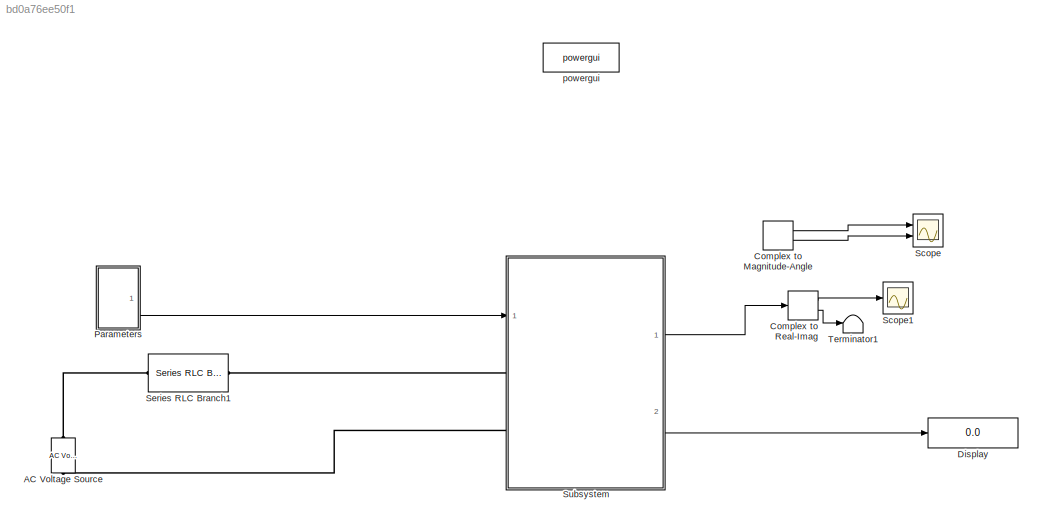
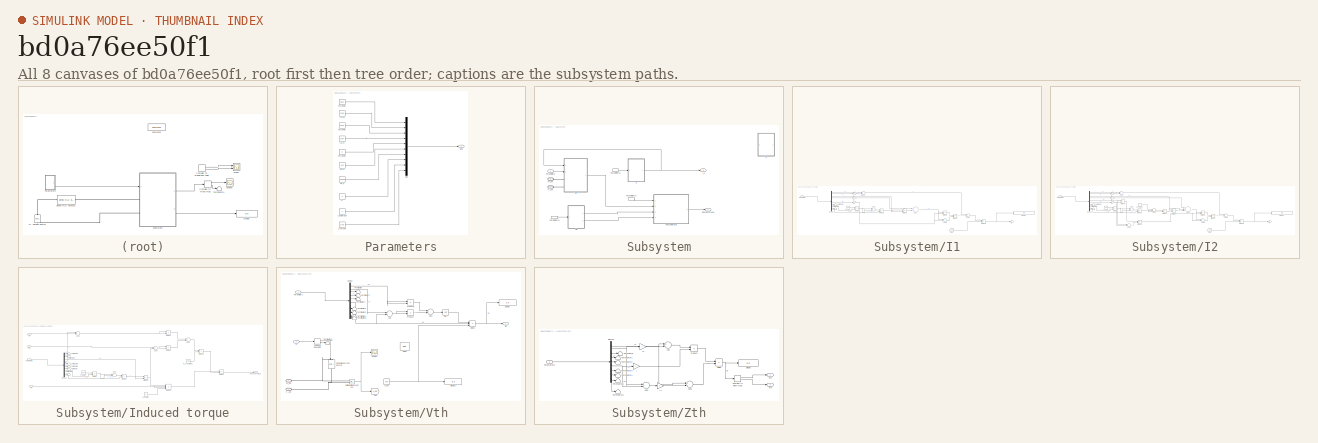
[diagram: thumbnail index - all 8 canvases of the model, root first then tree order]
MODEL slx_bd0a76ee50f1
KIND model
CONFIG AbsTol = auto
CONFIG EnableMultiTasking = off
CONFIG FixedStep = auto
CONFIG MaxStep = 1e-4
CONFIG MinStep = auto
CONFIG RelTol = 1e-3
CONFIG SampleTimeConstraint = Unconstrained
CONFIG Solver = VariableStepAuto
CONFIG SolverName = VariableStepAuto
CONFIG StartTime = 0.0
CONFIG StopTime = 0.2
BLOCK [Reference] AC Voltage Source  REF=powerlib/Electrical
Sources/AC Voltage Source
  Ports = [0, 0, 0, 0, 0, 1, 1]
  SourceBlock = powerlib/Electrical\nSources/AC Voltage Source
  SourceProductBaseCode = PS
  SourceProductName = Simscape Power Systems
  SourceType = AC Voltage Source
BLOCK [ComplexToMagnitudeAngle] Complex to Magnitude-Angle
  Commented = on
  Ports = [1, 2]
BLOCK [ComplexToRealImag] Complex to Real-Imag
  Ports = [1, 2]
BLOCK [Display] Display
  Decimation = 1
  Ports = [1]
BLOCK [SubSystem] Parameters
  Ports = [0, 1]
  RequestExecContextInheritance = off
  Variant = off
BLOCK [Constant] Parameters/L1 (H)
  Value = 1.106
BLOCK [Constant] Parameters/L2 (H)
  Value = 0.464
BLOCK [Constant] Parameters/Load torque
BLOCK [Mux] Parameters/Mux
  DisplayOption = bar
  Inputs = 10
  Ports = [10, 1]
BLOCK [Outport] Parameters/Out1
  IconDisplay = Port number
BLOCK [Constant] Parameters/P
  Value = 4
BLOCK [Constant] Parameters/R1 (Ohms)
  Value = 0.641
BLOCK [Constant] Parameters/R2 (Ohms)
  Value = 0.332
BLOCK [Constant] Parameters/R2_s
  Value = 15.0909
BLOCK [Constant] Parameters/Rc (Ohms)
  Value = 2
BLOCK [Constant] Parameters/Xm (H)
  Value = 26.3
BLOCK [Constant] Parameters/n_m (rpm)
  Value = 1760
BLOCK [Scope] Scope
  Commented = on
  NumInputPorts = 2
  Ports = [2]
  ScopeSpecificationString = Simulink.scopes.TimeScopeBlockCfg('CurrentConfiguration', extmgr.ConfigurationSet(extmgr.Configuration('Core','General UI',true),extmgr.Configuration('Core','Source UI',true),extmgr.Configuration('Sources','WiredSimulink',true),extmgr.Configuration('Visuals','Time Domain',true,'SerializedDisplays',{struct('MinYLimReal','-23.48372','MaxYLimReal','211.35347','YLabelReal','','MinYLimMag','0.00000','M...<+1994ch>
BLOCK [Scope] Scope1
  NumInputPorts = 1
  Ports = [1]
  ScopeSpecificationString = Simulink.scopes.TimeScopeBlockCfg('CurrentConfiguration', extmgr.ConfigurationSet(extmgr.Configuration('Core','General UI',true),extmgr.Configuration('Core','Source UI',true),extmgr.Configuration('Sources','WiredSimulink',true,'DataLoggingVariableName','ScopeData1'),extmgr.Configuration('Visuals','Time Domain',true,'SerializedDisplays',{struct('MinYLimReal','-19.98213','MaxYLimReal','19.75437','YL...<+1737ch>
BLOCK [Reference] Series RLC Branch1  REF=powerlib/Elements/Series RLC Branch
  Ports = [0, 0, 0, 0, 0, 1, 1]
  SourceBlock = powerlib/Elements/Series RLC Branch
  SourceProductBaseCode = PS
  SourceProductName = Simscape Power Systems
  SourceType = Series RLC Branch
BLOCK [SubSystem] Subsystem
  Ports = [1, 2, 0, 0, 0, 2]
  RequestExecContextInheritance = off
  Variant = off
BLOCK [SubSystem] Subsystem/I1
  Ports = [1, 1]
  RequestExecContextInheritance = off
  Variant = off
BLOCK [Gain] Subsystem/I1/ 
  Gain = i
  OutDataTypeStr = Inherit: Inherit via internal rule
  ParamDataTypeStr = Inherit: Inherit via internal rule
  SaturateOnIntegerOverflow = off
BLOCK [Gain] Subsystem/I1/ 1
  Gain = i
  OutDataTypeStr = Inherit: Inherit via internal rule
  ParamDataTypeStr = Inherit: Inherit via internal rule
  SaturateOnIntegerOverflow = off
BLOCK [Constant] Subsystem/I1/120*f
  Value = 7200
BLOCK [Sum] Subsystem/I1/Add1
  InputSameDT = off
  Inputs = +-
  OutDataTypeStr = Inherit: Inherit via internal rule
  Ports = [2, 1]
  SaturateOnIntegerOverflow = off
BLOCK [Sum] Subsystem/I1/Add3
  InputSameDT = off
  OutDataTypeStr = Inherit: Inherit via internal rule
  Ports = [2, 1]
  SaturateOnIntegerOverflow = off
BLOCK [Sum] Subsystem/I1/Add5
  InputSameDT = off
  OutDataTypeStr = Inherit: Inherit via internal rule
  Ports = [2, 1]
  SaturateOnIntegerOverflow = off
BLOCK [Sum] Subsystem/I1/Add6
  InputSameDT = off
  OutDataTypeStr = Inherit: Inherit via internal rule
  Ports = [2, 1]
  SaturateOnIntegerOverflow = off
BLOCK [Sum] Subsystem/I1/Add7
  InputSameDT = off
  OutDataTypeStr = Inherit: Inherit via internal rule
  Ports = [2, 1]
  SaturateOnIntegerOverflow = off
BLOCK [Demux] Subsystem/I1/Demux
  DisplayOption = bar
  Outputs = 10
  Ports = [1, 10]
BLOCK [Display] Subsystem/I1/Display
  Decimation = 1
  Ports = [1]
BLOCK [Product] Subsystem/I1/Divide
  InputSameDT = off
  Inputs = */
  OutDataTypeStr = Inherit: Inherit via internal rule
  Ports = [2, 1]
  RndMeth = Floor
  SaturateOnIntegerOverflow = off
BLOCK [Product] Subsystem/I1/Divide1
  InputSameDT = off
  Inputs = */
  OutDataTypeStr = Inherit: Inherit via internal rule
  Ports = [2, 1]
  RndMeth = Floor
  SaturateOnIntegerOverflow = off
BLOCK [Product] Subsystem/I1/Divide3
  InputSameDT = off
  Inputs = /*
  OutDataTypeStr = Inherit: Inherit via internal rule
  Ports = [2, 1]
  RndMeth = Floor
  SaturateOnIntegerOverflow = off
BLOCK [Product] Subsystem/I1/Divide6
  InputSameDT = off
  Inputs = **
  OutDataTypeStr = Inherit: Inherit via internal rule
  Ports = [2, 1]
  RndMeth = Floor
  SaturateOnIntegerOverflow = off
BLOCK [Product] Subsystem/I1/Divide7
  InputSameDT = off
  Inputs = */
  OutDataTypeStr = Inherit: Inherit via internal rule
  Ports = [2, 1]
  RndMeth = Floor
  SaturateOnIntegerOverflow = off
BLOCK [Product] Subsystem/I1/Divide8
  InputSameDT = off
  Inputs = /*
  OutDataTypeStr = Inherit: Inherit via internal rule
  Ports = [2, 1]
  RndMeth = Floor
  SaturateOnIntegerOverflow = off
BLOCK [From] Subsystem/I1/From
  GotoTag = V_phi
  TagVisibility = global
BLOCK [Outport] Subsystem/I1/I1
  IconDisplay = Port number
BLOCK [Inport] Subsystem/I1/Parameters
  IconDisplay = Port number
BLOCK [Terminator] Subsystem/I1/Terminator
BLOCK [Terminator] Subsystem/I1/Terminator1
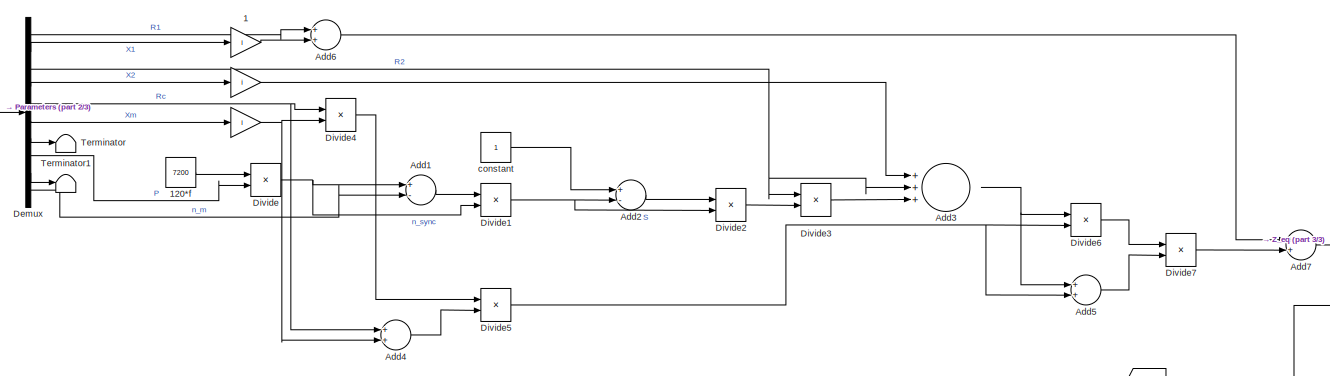
[diagram: Subsystem/I2 - part 1/3, center side, full height]
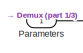
[diagram: Subsystem/I2 - part 2/3, top left region]
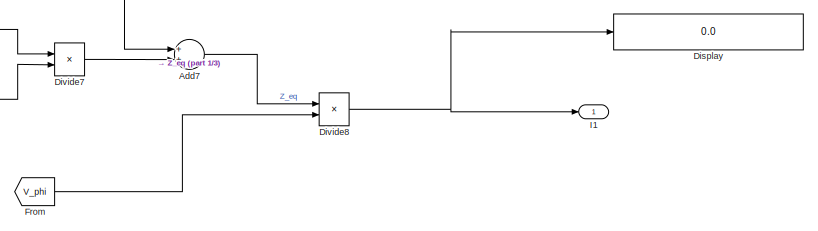
[diagram: Subsystem/I2 - part 3/3, bottom right region]
BLOCK [SubSystem] Subsystem/I2
  Commented = on
  Ports = [1, 1]
  RequestExecContextInheritance = off
  Variant = off
BLOCK [Gain] Subsystem/I2/ 
  Gain = i
  OutDataTypeStr = Inherit: Inherit via internal rule
  ParamDataTypeStr = Inherit: Inherit via internal rule
  SaturateOnIntegerOverflow = off
BLOCK [Gain] Subsystem/I2/ 1
  Gain = i
  OutDataTypeStr = Inherit: Inherit via internal rule
  ParamDataTypeStr = Inherit: Inherit via internal rule
  SaturateOnIntegerOverflow = off
BLOCK [Constant] Subsystem/I2/120*f
  Value = 7200
BLOCK [Sum] Subsystem/I2/Add1
  InputSameDT = off
  Inputs = +-
  OutDataTypeStr = Inherit: Inherit via internal rule
  Ports = [2, 1]
  SaturateOnIntegerOverflow = off
BLOCK [Sum] Subsystem/I2/Add2
  InputSameDT = off
  Inputs = +-
  OutDataTypeStr = Inherit: Inherit via internal rule
  Ports = [2, 1]
  SaturateOnIntegerOverflow = off
BLOCK [Sum] Subsystem/I2/Add3
  InputSameDT = off
  Inputs = +++
  OutDataTypeStr = Inherit: Inherit via internal rule
  Ports = [3, 1]
  SaturateOnIntegerOverflow = off
BLOCK [Sum] Subsystem/I2/Add4
  InputSameDT = off
  OutDataTypeStr = Inherit: Inherit via internal rule
  Ports = [2, 1]
  SaturateOnIntegerOverflow = off
BLOCK [Sum] Subsystem/I2/Add5
  InputSameDT = off
  OutDataTypeStr = Inherit: Inherit via internal rule
  Ports = [2, 1]
  SaturateOnIntegerOverflow = off
BLOCK [Sum] Subsystem/I2/Add6
  InputSameDT = off
  OutDataTypeStr = Inherit: Inherit via internal rule
  Ports = [2, 1]
  SaturateOnIntegerOverflow = off
BLOCK [Sum] Subsystem/I2/Add7
  InputSameDT = off
  OutDataTypeStr = Inherit: Inherit via internal rule
  Ports = [2, 1]
  SaturateOnIntegerOverflow = off
BLOCK [Demux] Subsystem/I2/Demux
  DisplayOption = bar
  Outputs = 10
  Ports = [1, 10]
BLOCK [Display] Subsystem/I2/Display
  Decimation = 1
  Ports = [1]
BLOCK [Product] Subsystem/I2/Divide
  InputSameDT = off
  Inputs = */
  OutDataTypeStr = Inherit: Inherit via internal rule
  Ports = [2, 1]
  RndMeth = Floor
  SaturateOnIntegerOverflow = off
BLOCK [Product] Subsystem/I2/Divide1
  InputSameDT = off
  Inputs = */
  OutDataTypeStr = Inherit: Inherit via internal rule
  Ports = [2, 1]
  RndMeth = Floor
  SaturateOnIntegerOverflow = off
BLOCK [Product] Subsystem/I2/Divide2
  InputSameDT = off
  Inputs = */
  OutDataTypeStr = Inherit: Inherit via internal rule
  Ports = [2, 1]
  RndMeth = Floor
  SaturateOnIntegerOverflow = off
BLOCK [Product] Subsystem/I2/Divide3
  InputSameDT = off
  Inputs = **
  OutDataTypeStr = Inherit: Inherit via internal rule
  Ports = [2, 1]
  RndMeth = Floor
  SaturateOnIntegerOverflow = off
BLOCK [Product] Subsystem/I2/Divide4
  InputSameDT = off
  Inputs = **
  OutDataTypeStr = Inherit: Inherit via internal rule
  Ports = [2, 1]
  RndMeth = Floor
  SaturateOnIntegerOverflow = off
BLOCK [Product] Subsystem/I2/Divide5
  InputSameDT = off
  Inputs = */
  OutDataTypeStr = Inherit: Inherit via internal rule
  Ports = [2, 1]
  RndMeth = Floor
  SaturateOnIntegerOverflow = off
BLOCK [Product] Subsystem/I2/Divide6
  InputSameDT = off
  Inputs = **
  OutDataTypeStr = Inherit: Inherit via internal rule
  Ports = [2, 1]
  RndMeth = Floor
  SaturateOnIntegerOverflow = off
BLOCK [Product] Subsystem/I2/Divide7
  InputSameDT = off
  Inputs = */
  OutDataTypeStr = Inherit: Inherit via internal rule
  Ports = [2, 1]
  RndMeth = Floor
  SaturateOnIntegerOverflow = off
BLOCK [Product] Subsystem/I2/Divide8
  InputSameDT = off
  Inputs = /*
  OutDataTypeStr = Inherit: Inherit via internal rule
  Ports = [2, 1]
  RndMeth = Floor
  SaturateOnIntegerOverflow = off
BLOCK [From] Subsystem/I2/From
  GotoTag = V_phi
  TagVisibility = global
BLOCK [Outport] Subsystem/I2/I1
  IconDisplay = Port number
BLOCK [Inport] Subsystem/I2/Parameters
  IconDisplay = Port number
BLOCK [Terminator] Subsystem/I2/Terminator
BLOCK [Terminator] Subsystem/I2/Terminator1
BLOCK [Constant] Subsystem/I2/constant
BLOCK [Outport] Subsystem/I_1
  IconDisplay = Port number
BLOCK [Outport] Subsystem/Induced Torque
  IconDisplay = Port number
  Port = 2
BLOCK [SubSystem] Subsystem/Induced torque
  Ports = [4, 1]
  RequestExecContextInheritance = off
  Variant = off
BLOCK [Constant] Subsystem/Induced torque/120*f
  Value = 7200
BLOCK [Sum] Subsystem/Induced torque/Add1
  InputSameDT = off
  Inputs = +-
  OutDataTypeStr = Inherit: Inherit via internal rule
  Ports = [2, 1]
  SaturateOnIntegerOverflow = off
BLOCK [Sum] Subsystem/Induced torque/Add2
  InputSameDT = off
  OutDataTypeStr = Inherit: Inherit via internal rule
  Ports = [2, 1]
  SaturateOnIntegerOverflow = off
BLOCK [Sum] Subsystem/Induced torque/Add3
  InputSameDT = off
  OutDataTypeStr = Inherit: Inherit via internal rule
  Ports = [2, 1]
  SaturateOnIntegerOverflow = off
BLOCK [Sum] Subsystem/Induced torque/Add4
  InputSameDT = off
  OutDataTypeStr = Inherit: Inherit via internal rule
  Ports = [2, 1]
  SaturateOnIntegerOverflow = off
BLOCK [Demux] Subsystem/Induced torque/Demux
  DisplayOption = bar
  Outputs = 10
  Ports = [1, 10]
BLOCK [Product] Subsystem/Induced torque/Divide
  InputSameDT = off
  Inputs = */
  OutDataTypeStr = Inherit: Inherit via internal rule
  Ports = [2, 1]
  RndMeth = Floor
  SaturateOnIntegerOverflow = off
BLOCK [Product] Subsystem/Induced torque/Divide1
  InputSameDT = off
  Inputs = */
  OutDataTypeStr = Inherit: Inherit via internal rule
  Ports = [2, 1]
  RndMeth = Floor
  SaturateOnIntegerOverflow = off
BLOCK [Product] Subsystem/Induced torque/Divide2
  InputSameDT = off
  Inputs = **
  OutDataTypeStr = Inherit: Inherit via internal rule
  Ports = [2, 1]
  RndMeth = Floor
  SaturateOnIntegerOverflow = off
BLOCK [Product] Subsystem/Induced torque/Divide3
  InputSameDT = off
  Inputs = /*
  OutDataTypeStr = Inherit: Inherit via internal rule
  Ports = [2, 1]
  RndMeth = Floor
  SaturateOnIntegerOverflow = off
BLOCK [Product] Subsystem/Induced torque/Divide4
  InputSameDT = off
  Inputs = **
  OutDataTypeStr = Inherit: Inherit via internal rule
  Ports = [2, 1]
  RndMeth = Floor
  SaturateOnIntegerOverflow = off
BLOCK [Product] Subsystem/Induced torque/Divide5
  InputSameDT = off
  Inputs = ****
  OutDataTypeStr = Inherit: Inherit via internal rule
  Ports = [4, 1]
  RndMeth = Floor
  SaturateOnIntegerOverflow = off
BLOCK [Product] Subsystem/Induced torque/Divide6
  InputSameDT = off
  Inputs = **
  OutDataTypeStr = Inherit: Inherit via internal rule
  Ports = [2, 1]
  RndMeth = Floor
  SaturateOnIntegerOverflow = off
BLOCK [Product] Subsystem/Induced torque/Divide7
  InputSameDT = off
  Inputs = */
  OutDataTypeStr = Inherit: Inherit via internal rule
  Ports = [2, 1]
  RndMeth = Floor
  SaturateOnIntegerOverflow = off
BLOCK [Outport] Subsystem/Induced torque/Induced Torque
  IconDisplay = Port number
BLOCK [Inport] Subsystem/Induced torque/Parameters
  IconDisplay = Port number
BLOCK [Inport] Subsystem/Induced torque/Rth
  IconDisplay = Port number
  Port = 3
BLOCK [Terminator] Subsystem/Induced torque/Terminator
BLOCK [Terminator] Subsystem/Induced torque/Terminator1
BLOCK [Terminator] Subsystem/Induced torque/Terminator2
BLOCK [Terminator] Subsystem/Induced torque/Terminator3
BLOCK [Terminator] Subsystem/Induced torque/Terminator4
BLOCK [Terminator] Subsystem/Induced torque/Terminator5
BLOCK [Inport] Subsystem/Induced torque/Vth
  IconDisplay = Port number
  Port = 2
BLOCK [Inport] Subsystem/Induced torque/Xth
  IconDisplay = Port number
  Port = 4
BLOCK [Constant] Subsystem/Induced torque/constant
  Value = 3
BLOCK [Constant] Subsystem/Induced torque/w_sync (rad//s)
  Value = 188.5
BLOCK [Inport] Subsystem/Parameters
  IconDisplay = Port number
BLOCK [InportShadow] Subsystem/Parameters1
  IconDisplay = Port number
BLOCK [InportShadow] Subsystem/Parameters2
  IconDisplay = Port number
BLOCK [InportShadow] Subsystem/Parameters3
  IconDisplay = Port number
BLOCK [PMIOPort] Subsystem/V-_phi
  Port = 2
  Side = Left
BLOCK [PMIOPort] Subsystem/V=_phi
  Port = 1
  Side = Left
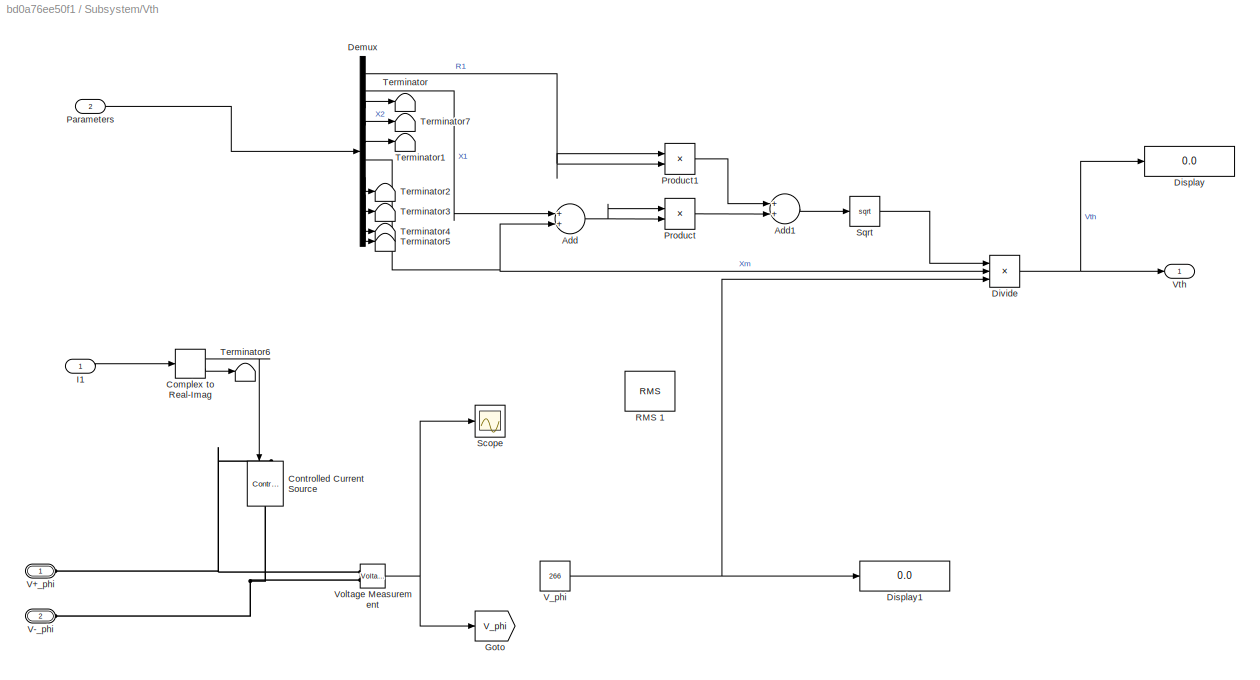
BLOCK [SubSystem] Subsystem/Vth
  Ports = [2, 1, 0, 0, 0, 2]
  RequestExecContextInheritance = off
  Variant = off
BLOCK [Sum] Subsystem/Vth/Add
  InputSameDT = off
  OutDataTypeStr = Inherit: Inherit via internal rule
  Ports = [2, 1]
  SaturateOnIntegerOverflow = off
BLOCK [Sum] Subsystem/Vth/Add1
  InputSameDT = off
  OutDataTypeStr = Inherit: Inherit via internal rule
  Ports = [2, 1]
  SaturateOnIntegerOverflow = off
BLOCK [ComplexToRealImag] Subsystem/Vth/Complex to Real-Imag
  Ports = [1, 2]
BLOCK [Reference] Subsystem/Vth/Controlled Current Source  REF=powerlib/Electrical
Sources/Controlled Current Source
  Ports = [1, 0, 0, 0, 0, 1, 1]
  SourceBlock = powerlib/Electrical\nSources/Controlled Current Source
  SourceProductBaseCode = PS
  SourceProductName = Simscape Power Systems
  SourceType = Controlled Current Source
BLOCK [Demux] Subsystem/Vth/Demux
  DisplayOption = bar
  Outputs = 10
  Ports = [1, 10]
BLOCK [Display] Subsystem/Vth/Display
  Decimation = 1
  Ports = [1]
BLOCK [Display] Subsystem/Vth/Display1
  Decimation = 1
  Ports = [1]
BLOCK [Product] Subsystem/Vth/Divide
  InputSameDT = off
  Inputs = /**
  OutDataTypeStr = Inherit: Inherit via internal rule
  Ports = [3, 1]
  RndMeth = Floor
  SaturateOnIntegerOverflow = off
BLOCK [Goto] Subsystem/Vth/Goto
  GotoTag = V_phi
  TagVisibility = global
BLOCK [Inport] Subsystem/Vth/I1
  IconDisplay = Port number
BLOCK [Inport] Subsystem/Vth/Parameters
  IconDisplay = Port number
  Port = 2
BLOCK [Product] Subsystem/Vth/Product
  InputSameDT = off
  OutDataTypeStr = Inherit: Inherit via internal rule
  Ports = [2, 1]
  RndMeth = Floor
  SaturateOnIntegerOverflow = off
BLOCK [Product] Subsystem/Vth/Product1
  InputSameDT = off
  OutDataTypeStr = Inherit: Inherit via internal rule
  Ports = [2, 1]
  RndMeth = Floor
  SaturateOnIntegerOverflow = off
BLOCK [Reference] Subsystem/Vth/RMS 1  REF=powerlib_meascontrol/Measurements/RMS
  Ports = [1, 1]
  SourceBlock = powerlib_meascontrol/Measurements/RMS
  SourceProductBaseCode = PS
  SourceProductName = Simscape Power Systems
  SourceType = RMS
BLOCK [Scope] Subsystem/Vth/Scope
  NumInputPorts = 1
  Ports = [1]
  ScopeSpecificationString = Simulink.scopes.TimeScopeBlockCfg('CurrentConfiguration', extmgr.ConfigurationSet(extmgr.Configuration('Core','General UI',true),extmgr.Configuration('Core','Source UI',true),extmgr.Configuration('Sources','WiredSimulink',true,'DataLoggingVariableName','ScopeData1'),extmgr.Configuration('Visuals','Time Domain',true,'SerializedDisplays',{struct('MinYLimReal','-347.08088','MaxYLimReal','319.67874','...<+1463ch>
BLOCK [Sqrt] Subsystem/Vth/Sqrt
BLOCK [Terminator] Subsystem/Vth/Terminator
BLOCK [Terminator] Subsystem/Vth/Terminator1
BLOCK [Terminator] Subsystem/Vth/Terminator2
BLOCK [Terminator] Subsystem/Vth/Terminator3
BLOCK [Terminator] Subsystem/Vth/Terminator4
BLOCK [Terminator] Subsystem/Vth/Terminator5
BLOCK [Terminator] Subsystem/Vth/Terminator6
BLOCK [Terminator] Subsystem/Vth/Terminator7
BLOCK [PMIOPort] Subsystem/Vth/V+_phi
  Port = 1
  Side = Left
BLOCK [PMIOPort] Subsystem/Vth/V-_phi
  Port = 2
  Side = Left
BLOCK [Constant] Subsystem/Vth/V_phi
  Value = 266
BLOCK [Reference] Subsystem/Vth/Voltage Measurement  REF=powerlib/Measurements/Voltage Measurement
  Ports = [0, 1, 0, 0, 0, 2]
  SourceBlock = powerlib/Measurements/Voltage Measurement
  SourceProductBaseCode = PS
  SourceProductName = Simscape Power Systems
  SourceType = Voltage Measurement
  UserDataPersistent = on
BLOCK [Outport] Subsystem/Vth/Vth
  IconDisplay = Port number
BLOCK [SubSystem] Subsystem/Zth
  Ports = [1, 2]
  RequestExecContextInheritance = off
  Variant = off
BLOCK [Sum] Subsystem/Zth/Add
  InputSameDT = off
  OutDataTypeStr = Inherit: Inherit via internal rule
  Ports = [2, 1]
  SaturateOnIntegerOverflow = off
BLOCK [Sum] Subsystem/Zth/Add1
  InputSameDT = off
  OutDataTypeStr = Inherit: Inherit via internal rule
  Ports = [2, 1]
  SaturateOnIntegerOverflow = off
BLOCK [Sum] Subsystem/Zth/Add2
  InputSameDT = off
  OutDataTypeStr = Inherit: Inherit via internal rule
  Ports = [2, 1]
  SaturateOnIntegerOverflow = off
BLOCK [ComplexToRealImag] Subsystem/Zth/Complex to Real-Imag
  Ports = [1, 2]
BLOCK [Demux] Subsystem/Zth/Demux
  DisplayOption = bar
  Outputs = 10
  Ports = [1, 10]
BLOCK [Display] Subsystem/Zth/Display
  Decimation = 1
  Ports = [1]
BLOCK [Product] Subsystem/Zth/Divide
  InputSameDT = off
  Inputs = */
  OutDataTypeStr = Inherit: Inherit via internal rule
  Ports = [2, 1]
  RndMeth = Floor
  SaturateOnIntegerOverflow = off
BLOCK [Inport] Subsystem/Zth/Parameters
  IconDisplay = Port number
BLOCK [Product] Subsystem/Zth/Product
  InputSameDT = off
  OutDataTypeStr = Inherit: Inherit via internal rule
  Ports = [2, 1]
  RndMeth = Floor
  SaturateOnIntegerOverflow = off
BLOCK [Outport] Subsystem/Zth/Rth
  IconDisplay = Port number
BLOCK [Terminator] Subsystem/Zth/Terminator
BLOCK [Terminator] Subsystem/Zth/Terminator1
BLOCK [Terminator] Subsystem/Zth/Terminator2
BLOCK [Terminator] Subsystem/Zth/Terminator3
BLOCK [Terminator] Subsystem/Zth/Terminator4
BLOCK [Terminator] Subsystem/Zth/Terminator5
BLOCK [Terminator] Subsystem/Zth/Terminator6
BLOCK [Outport] Subsystem/Zth/Xth
  IconDisplay = Port number
  Port = 2
BLOCK [Gain] Subsystem/Zth/i 
  Gain = i
  OutDataTypeStr = Inherit: Inherit via internal rule
  ParamDataTypeStr = Inherit: Inherit via internal rule
  SaturateOnIntegerOverflow = off
BLOCK [Gain] Subsystem/Zth/i 1
  Gain = i
  OutDataTypeStr = Inherit: Inherit via internal rule
  ParamDataTypeStr = Inherit: Inherit via internal rule
  SaturateOnIntegerOverflow = off
BLOCK [Gain] Subsystem/Zth/i 2
  Gain = i
  OutDataTypeStr = Inherit: Inherit via internal rule
  ParamDataTypeStr = Inherit: Inherit via internal rule
  SaturateOnIntegerOverflow = off
BLOCK [Terminator] Terminator1
BLOCK [Reference] powergui  REF=powerlib/powergui
  Ports = []
  Priority = 1
  SourceBlock = powerlib/powergui
  SourceProductBaseCode = PS
  SourceProductName = Simscape Power Systems
  SourceType = PSB option menu block
LINE Complex to Magnitude-Angle:1 -> Scope:1
LINE Complex to Magnitude-Angle:2 -> Scope:2
LINE Complex to Real-Imag:1 -> Scope1:1
LINE Complex to Real-Imag:2 -> Terminator1:1
LINE Parameters/L1 (H):1 -> Parameters/Mux:2
LINE Parameters/L2 (H):1 -> Parameters/Mux:4
LINE Parameters/Load torque:1 -> Parameters/Mux:9
LINE Parameters/Mux:1 -> Parameters/Out1:1
LINE Parameters/P:1 -> Parameters/Mux:8
LINE Parameters/R1 (Ohms):1 -> Parameters/Mux:1
LINE Parameters/R2 (Ohms):1 -> Parameters/Mux:3
LINE Parameters/R2_s:1 -> Parameters/Mux:7
LINE Parameters/Rc (Ohms):1 -> Parameters/Mux:5
LINE Parameters/Xm (H):1 -> Parameters/Mux:6
LINE Parameters/n_m (rpm):1 -> Parameters/Mux:10
LINE Parameters:1 -> Subsystem:1
LINE Subsystem/I1/ 1:1 -> Subsystem/I1/Add6:2
NET Subsystem/I1/ :1 -> Subsystem/I1/Add3:1, Subsystem/I1/Add5:2, Subsystem/I1/Divide6:2
LINE Subsystem/I1/120*f:1 -> Subsystem/I1/Divide:1
LINE Subsystem/I1/Add1:1 -> Subsystem/I1/Divide1:1
NET Subsystem/I1/Add3:1 -> Subsystem/I1/Add5:1, Subsystem/I1/Divide6:1
LINE Subsystem/I1/Add5:1 -> Subsystem/I1/Divide7:2
LINE Subsystem/I1/Add6:1 -> Subsystem/I1/Add7:1
LINE Subsystem/I1/Add7:1 -> Subsystem/I1/Divide8:1
LINE Subsystem/I1/Demux:1 -> Subsystem/I1/Add6:1
LINE Subsystem/I1/Demux:10 -> Subsystem/I1/Add1:2
LINE Subsystem/I1/Demux:2 -> Subsystem/I1/ 1:1
LINE Subsystem/I1/Demux:3 -> Subsystem/I1/Divide3:2
LINE Subsystem/I1/Demux:4 -> Subsystem/I1/ :1
LINE Subsystem/I1/Demux:6 -> Subsystem/I1/ :1
LINE Subsystem/I1/Demux:7 -> Subsystem/I1/Terminator:1
LINE Subsystem/I1/Demux:8 -> Subsystem/I1/Divide:2
LINE Subsystem/I1/Demux:9 -> Subsystem/I1/Terminator1:1
LINE Subsystem/I1/Divide1:1 -> Subsystem/I1/Divide3:1
LINE Subsystem/I1/Divide3:1 -> Subsystem/I1/Add3:2
LINE Subsystem/I1/Divide6:1 -> Subsystem/I1/Divide7:1
LINE Subsystem/I1/Divide7:1 -> Subsystem/I1/Add7:2
NET Subsystem/I1/Divide8:1 -> Subsystem/I1/Display:1, Subsystem/I1/I1:1
NET Subsystem/I1/Divide:1 -> Subsystem/I1/Add1:1, Subsystem/I1/Divide1:2
LINE Subsystem/I1/From:1 -> Subsystem/I1/Divide8:2
LINE Subsystem/I1/Parameters:1 -> Subsystem/I1/Demux:1
NET Subsystem/I1:1 -> Subsystem/I_1:1, Subsystem/Vth:1
LINE Subsystem/I2/ 1:1 -> Subsystem/I2/Add6:2
NET Subsystem/I2/ :1 -> Subsystem/I2/Add3:1, Subsystem/I2/Add4:2, Subsystem/I2/Divide4:2
LINE Subsystem/I2/120*f:1 -> Subsystem/I2/Divide:1
LINE Subsystem/I2/Add1:1 -> Subsystem/I2/Divide1:1
LINE Subsystem/I2/Add2:1 -> Subsystem/I2/Divide2:1
NET Subsystem/I2/Add3:1 -> Subsystem/I2/Add5:1, Subsystem/I2/Divide6:1
LINE Subsystem/I2/Add4:1 -> Subsystem/I2/Divide5:2
LINE Subsystem/I2/Add5:1 -> Subsystem/I2/Divide7:2
LINE Subsystem/I2/Add6:1 -> Subsystem/I2/Add7:1
LINE Subsystem/I2/Add7:1 -> Subsystem/I2/Divide8:1
LINE Subsystem/I2/Demux:1 -> Subsystem/I2/Add6:1
LINE Subsystem/I2/Demux:10 -> Subsystem/I2/Add1:2
LINE Subsystem/I2/Demux:2 -> Subsystem/I2/ 1:1
NET Subsystem/I2/Demux:3 -> Subsystem/I2/Add3:2, Subsystem/I2/Divide3:1
LINE Subsystem/I2/Demux:4 -> Subsystem/I2/ :1
NET Subsystem/I2/Demux:5 -> Subsystem/I2/Add4:1, Subsystem/I2/Divide4:1
LINE Subsystem/I2/Demux:6 -> Subsystem/I2/ :1
LINE Subsystem/I2/Demux:7 -> Subsystem/I2/Terminator:1
LINE Subsystem/I2/Demux:8 -> Subsystem/I2/Divide:2
LINE Subsystem/I2/Demux:9 -> Subsystem/I2/Terminator1:1
NET Subsystem/I2/Divide1:1 -> Subsystem/I2/Add2:2, Subsystem/I2/Divide2:2
LINE Subsystem/I2/Divide2:1 -> Subsystem/I2/Divide3:2
LINE Subsystem/I2/Divide3:1 -> Subsystem/I2/Add3:3
LINE Subsystem/I2/Divide4:1 -> Subsystem/I2/Divide5:1
NET Subsystem/I2/Divide5:1 -> Subsystem/I2/Add5:2, Subsystem/I2/Divide6:2
LINE Subsystem/I2/Divide6:1 -> Subsystem/I2/Divide7:1
LINE Subsystem/I2/Divide7:1 -> Subsystem/I2/Add7:2
NET Subsystem/I2/Divide8:1 -> Subsystem/I2/Display:1, Subsystem/I2/I1:1
NET Subsystem/I2/Divide:1 -> Subsystem/I2/Add1:1, Subsystem/I2/Divide1:2
LINE Subsystem/I2/From:1 -> Subsystem/I2/Divide8:2
LINE Subsystem/I2/Parameters:1 -> Subsystem/I2/Demux:1
LINE Subsystem/I2/constant:1 -> Subsystem/I2/Add2:1
LINE Subsystem/Induced torque/120*f:1 -> Subsystem/Induced torque/Divide:1
LINE Subsystem/Induced torque/Add1:1 -> Subsystem/Induced torque/Divide1:1
NET Subsystem/Induced torque/Add2:1 -> Subsystem/Induced torque/Divide2:1, Subsystem/Induced torque/Divide2:2
NET Subsystem/Induced torque/Add3:1 -> Subsystem/Induced torque/Divide4:1, Subsystem/Induced torque/Divide4:2
LINE Subsystem/Induced torque/Add4:1 -> Subsystem/Induced torque/Divide6:1
LINE Subsystem/Induced torque/Demux:1 -> Subsystem/Induced torque/Terminator2:1
LINE Subsystem/Induced torque/Demux:10 -> Subsystem/Induced torque/Add1:2
LINE Subsystem/Induced torque/Demux:2 -> Subsystem/Induced torque/Terminator3:1
LINE Subsystem/Induced torque/Demux:3 -> Subsystem/Induced torque/Divide3:2
LINE Subsystem/Induced torque/Demux:4 -> Subsystem/Induced torque/Add2:1
LINE Subsystem/Induced torque/Demux:5 -> Subsystem/Induced torque/Terminator4:1
LINE Subsystem/Induced torque/Demux:6 -> Subsystem/Induced torque/Terminator5:1
LINE Subsystem/Induced torque/Demux:7 -> Subsystem/Induced torque/Terminator:1
LINE Subsystem/Induced torque/Demux:8 -> Subsystem/Induced torque/Divide:2
LINE Subsystem/Induced torque/Demux:9 -> Subsystem/Induced torque/Terminator1:1
LINE Subsystem/Induced torque/Divide1:1 -> Subsystem/Induced torque/Divide3:1
LINE Subsystem/Induced torque/Divide2:1 -> Subsystem/Induced torque/Add4:1
NET Subsystem/Induced torque/Divide3:1 -> Subsystem/Induced torque/Add3:2, Subsystem/Induced torque/Divide5:1
LINE Subsystem/Induced torque/Divide4:1 -> Subsystem/Induced torque/Add4:2
LINE Subsystem/Induced torque/Divide5:1 -> Subsystem/Induced torque/Divide7:1
LINE Subsystem/Induced torque/Divide6:1 -> Subsystem/Induced torque/Divide7:2
LINE Subsystem/Induced torque/Divide7:1 -> Subsystem/Induced torque/Induced Torque:1
NET Subsystem/Induced torque/Divide:1 -> Subsystem/Induced torque/Add1:1, Subsystem/Induced torque/Divide1:2
LINE Subsystem/Induced torque/Parameters:1 -> Subsystem/Induced torque/Demux:1
LINE Subsystem/Induced torque/Rth:1 -> Subsystem/Induced torque/Add3:1
NET Subsystem/Induced torque/Vth:1 -> Subsystem/Induced torque/Divide5:2, Subsystem/Induced torque/Divide5:3
LINE Subsystem/Induced torque/Xth:1 -> Subsystem/Induced torque/Add2:2
LINE Subsystem/Induced torque/constant:1 -> Subsystem/Induced torque/Divide5:4
LINE Subsystem/Induced torque/w_sync (rad//s):1 -> Subsystem/Induced torque/Divide6:2
LINE Subsystem/Induced torque:1 -> Subsystem/Induced Torque:1
LINE Subsystem/Parameters1:1 -> Subsystem/I1:1
LINE Subsystem/Parameters2:1 -> Subsystem/Zth:1
LINE Subsystem/Parameters3:1 -> Subsystem/Induced torque:1
LINE Subsystem/Parameters:1 -> Subsystem/Vth:2
LINE Subsystem/Vth/Add1:1 -> Subsystem/Vth/Sqrt:1
NET Subsystem/Vth/Add:1 -> Subsystem/Vth/Product:1, Subsystem/Vth/Product:2
LINE Subsystem/Vth/Complex to Real-Imag:1 -> Subsystem/Vth/Controlled Current Source:1
LINE Subsystem/Vth/Complex to Real-Imag:2 -> Subsystem/Vth/Terminator6:1
NET Subsystem/Vth/Demux:1 -> Subsystem/Vth/Product1:1, Subsystem/Vth/Product1:2
LINE Subsystem/Vth/Demux:10 -> Subsystem/Vth/Terminator5:1
LINE Subsystem/Vth/Demux:2 -> Subsystem/Vth/Add:1
LINE Subsystem/Vth/Demux:3 -> Subsystem/Vth/Terminator:1
LINE Subsystem/Vth/Demux:4 -> Subsystem/Vth/Terminator7:1
LINE Subsystem/Vth/Demux:5 -> Subsystem/Vth/Terminator1:1
NET Subsystem/Vth/Demux:6 -> Subsystem/Vth/Add:2, Subsystem/Vth/Divide:2
LINE Subsystem/Vth/Demux:7 -> Subsystem/Vth/Terminator2:1
LINE Subsystem/Vth/Demux:8 -> Subsystem/Vth/Terminator3:1
LINE Subsystem/Vth/Demux:9 -> Subsystem/Vth/Terminator4:1
NET Subsystem/Vth/Divide:1 -> Subsystem/Vth/Display:1, Subsystem/Vth/Vth:1
LINE Subsystem/Vth/I1:1 -> Subsystem/Vth/Complex to Real-Imag:1
LINE Subsystem/Vth/Parameters:1 -> Subsystem/Vth/Demux:1
LINE Subsystem/Vth/Product1:1 -> Subsystem/Vth/Add1:1
LINE Subsystem/Vth/Product:1 -> Subsystem/Vth/Add1:2
LINE Subsystem/Vth/Sqrt:1 -> Subsystem/Vth/Divide:1
NET Subsystem/Vth/V_phi:1 -> Subsystem/Vth/Display1:1, Subsystem/Vth/Divide:3
NET Subsystem/Vth/Voltage Measurement:1 -> Subsystem/Vth/Goto:1, Subsystem/Vth/Scope:1
LINE Subsystem/Vth:1 -> Subsystem/Induced torque:2
LINE Subsystem/Zth/Add1:1 -> Subsystem/Zth/i 1:1
LINE Subsystem/Zth/Add2:1 -> Subsystem/Zth/Divide:2
LINE Subsystem/Zth/Add:1 -> Subsystem/Zth/Product:1
LINE Subsystem/Zth/Complex to Real-Imag:1 -> Subsystem/Zth/Rth:1
LINE Subsystem/Zth/Complex to Real-Imag:2 -> Subsystem/Zth/Xth:1
NET Subsystem/Zth/Demux:1 -> Subsystem/Zth/Add2:1, Subsystem/Zth/Add:1
LINE Subsystem/Zth/Demux:10 -> Subsystem/Zth/Terminator6:1
NET Subsystem/Zth/Demux:2 -> Subsystem/Zth/Add1:1, Subsystem/Zth/i 2:1
LINE Subsystem/Zth/Demux:3 -> Subsystem/Zth/Terminator:1
LINE Subsystem/Zth/Demux:4 -> Subsystem/Zth/Terminator1:1
LINE Subsystem/Zth/Demux:5 -> Subsystem/Zth/Terminator2:1
NET Subsystem/Zth/Demux:6 -> Subsystem/Zth/Add1:2, Subsystem/Zth/i :1
LINE Subsystem/Zth/Demux:7 -> Subsystem/Zth/Terminator3:1
LINE Subsystem/Zth/Demux:8 -> Subsystem/Zth/Terminator4:1
LINE Subsystem/Zth/Demux:9 -> Subsystem/Zth/Terminator5:1
NET Subsystem/Zth/Divide:1 -> Subsystem/Zth/Complex to Real-Imag:1, Subsystem/Zth/Display:1
LINE Subsystem/Zth/Parameters:1 -> Subsystem/Zth/Demux:1
LINE Subsystem/Zth/Product:1 -> Subsystem/Zth/Divide:1
LINE Subsystem/Zth/i 1:1 -> Subsystem/Zth/Add2:2
LINE Subsystem/Zth/i 2:1 -> Subsystem/Zth/Add:2
LINE Subsystem/Zth/i :1 -> Subsystem/Zth/Product:2
LINE Subsystem/Zth:1 -> Subsystem/Induced torque:3
LINE Subsystem/Zth:2 -> Subsystem/Induced torque:4
LINE Subsystem:1 -> Complex to Real-Imag:1
LINE Subsystem:2 -> Display:1
PLINE AC Voltage Source:LConn1 -- Subsystem:LConn2
PLINE AC Voltage Source:RConn1 -- Series RLC Branch1:LConn1
PLINE Series RLC Branch1:RConn1 -- Subsystem:LConn1
PLINE Subsystem/V-_phi:RConn1 -- Subsystem/Vth:LConn2
PLINE Subsystem/V=_phi:RConn1 -- Subsystem/Vth:LConn1
PNET net1: Subsystem/Vth/Controlled Current Source:LConn1 -- Subsystem/Vth/V+_phi:RConn1 -- Subsystem/Vth/Voltage Measurement:LConn1
PNET net2: Subsystem/Vth/Controlled Current Source:RConn1 -- Subsystem/Vth/V-_phi:RConn1 -- Subsystem/Vth/Voltage Measurement:LConn2
note: NET lines group one-source signal fan-out (src -> all destinations, sorted); 1:1 wires keep LINE; PNET lines group multi-terminal physical nets as a canonical sorted terminal list (undirected conserving connections); 2-terminal nets keep the pairwise PLINE form
